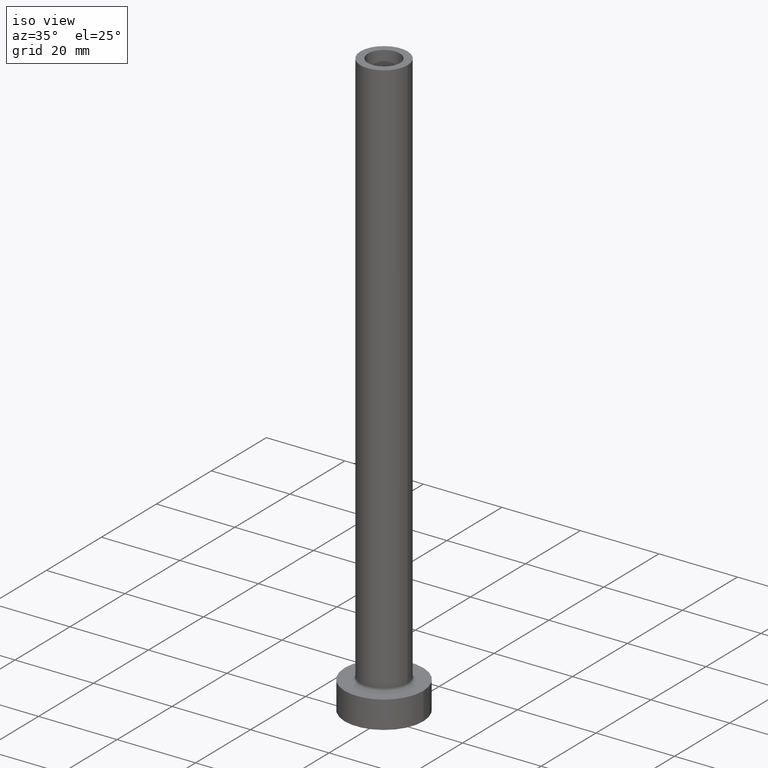
[diagram: clean part render]
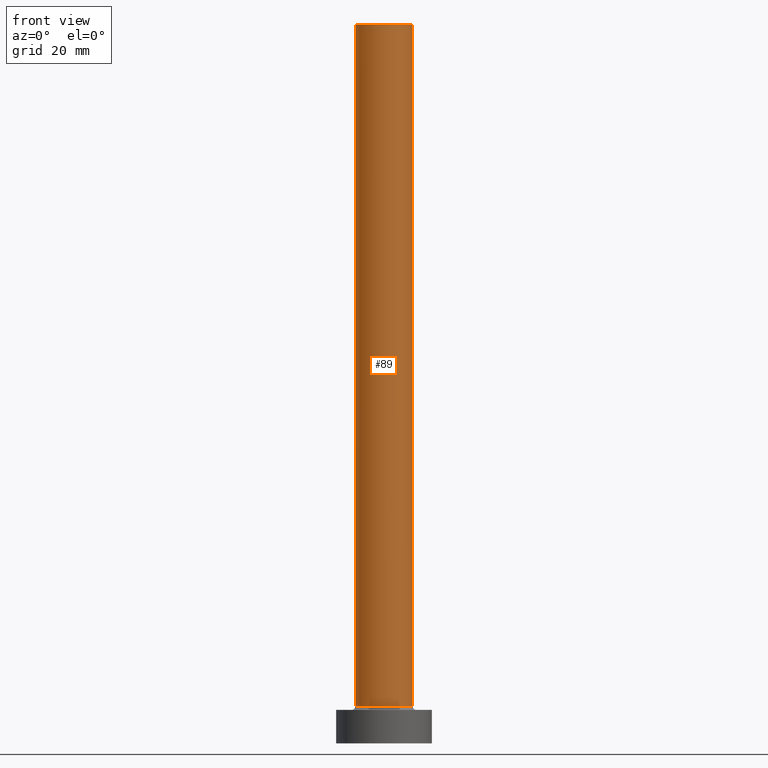
[diagram: tour spotlight — one face highlighted and labeled with its STEP entity id]
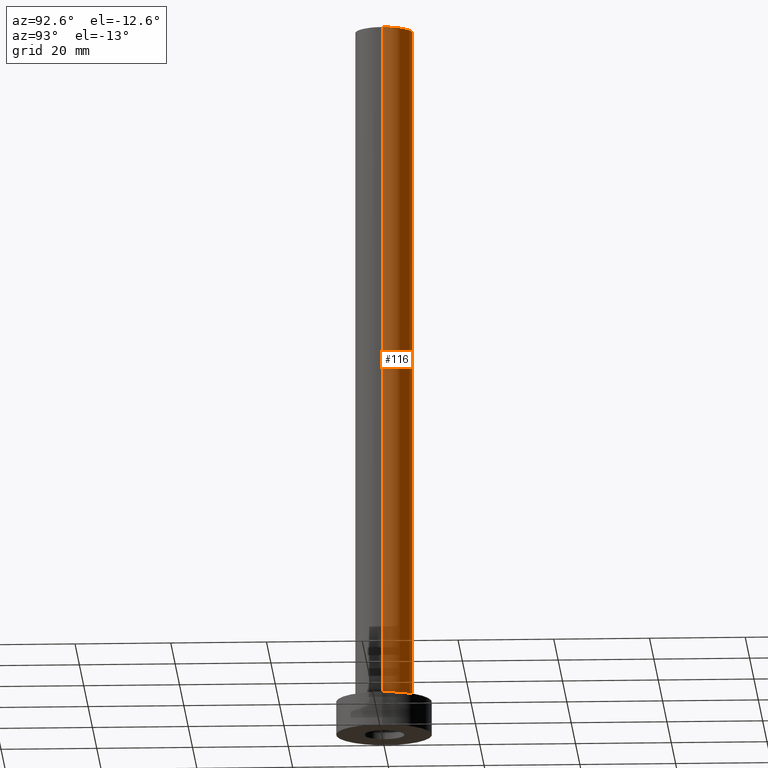
[diagram: tour spotlight — one face highlighted and labeled with its STEP entity id]
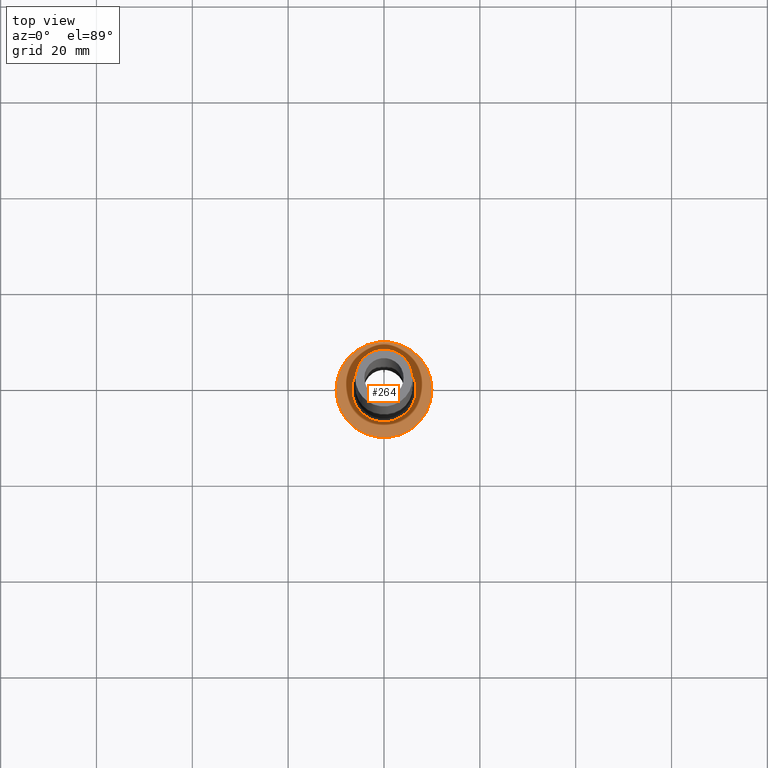
[diagram: tour spotlight — one face highlighted and labeled with its STEP entity id]
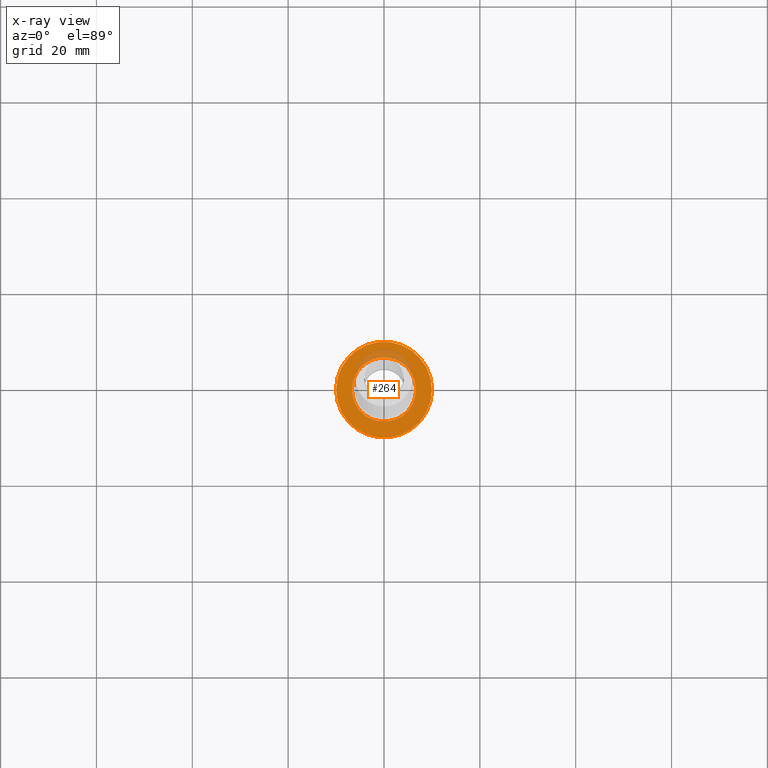
[diagram: x-ray of the same camera — body ghosted, this tour face saturated]
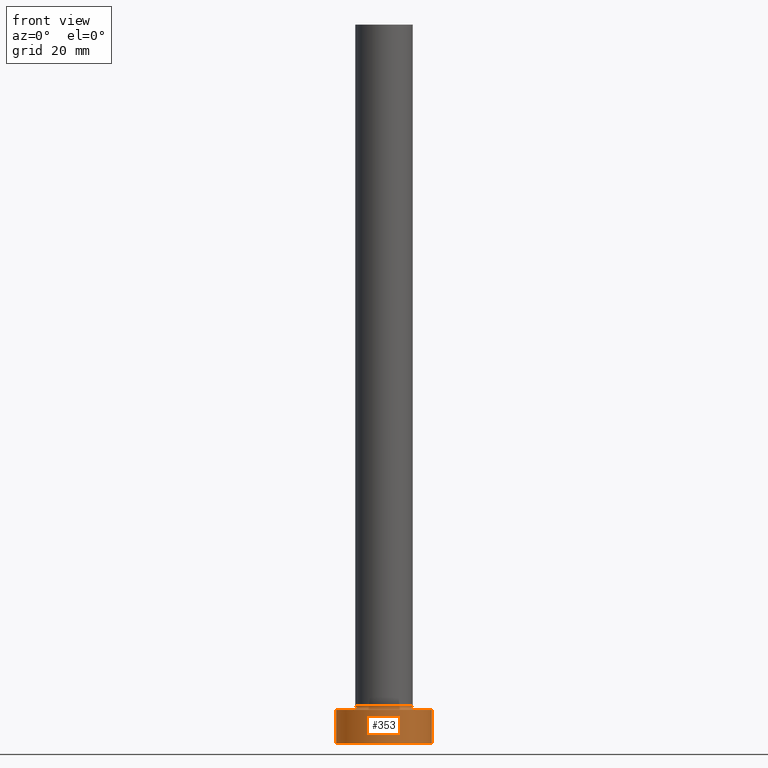
[diagram: tour spotlight — one face highlighted and labeled with its STEP entity id]
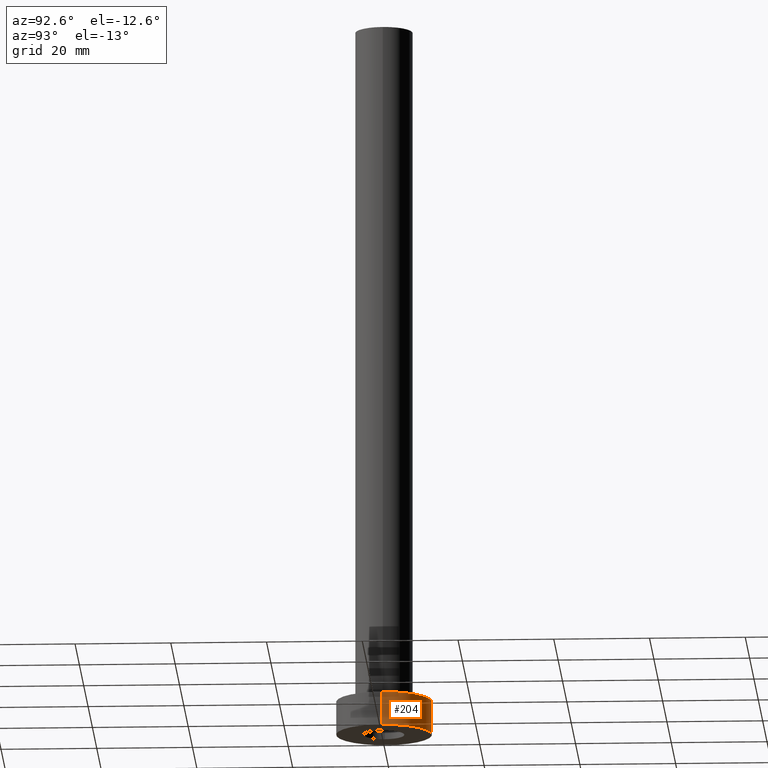
[diagram: tour spotlight — one face highlighted and labeled with its STEP entity id]
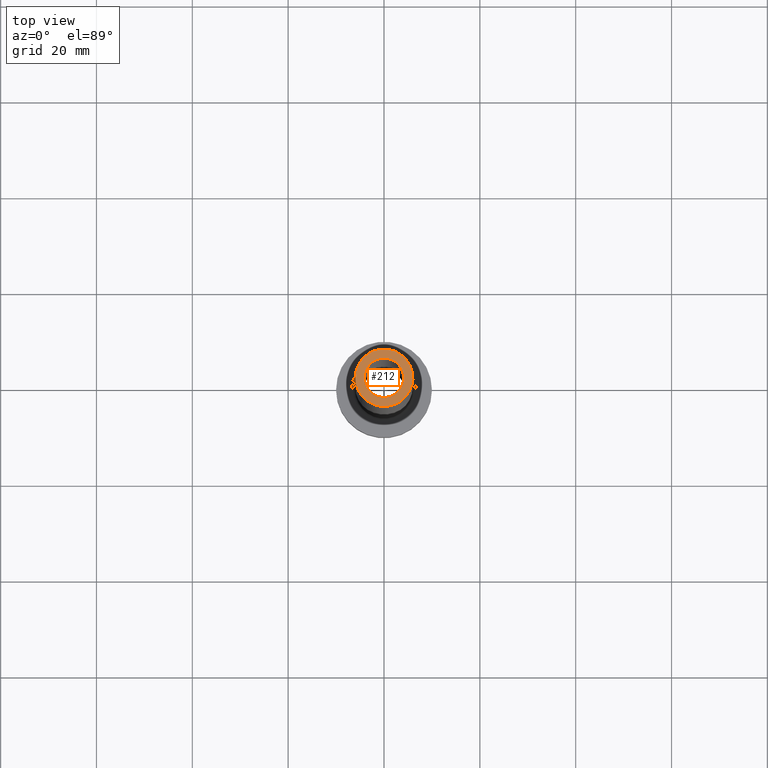
[diagram: tour spotlight — one face highlighted and labeled with its STEP entity id]
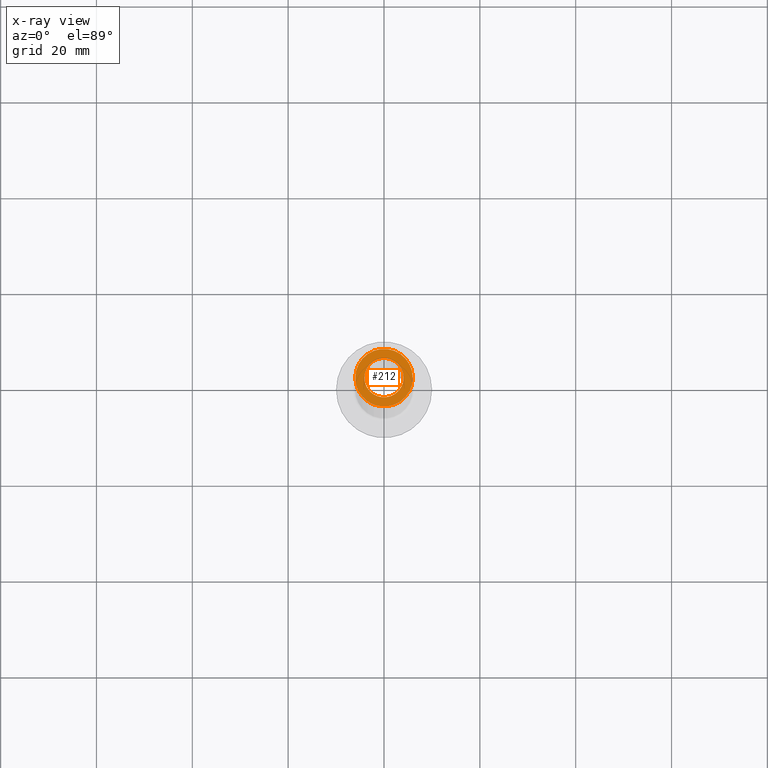
[diagram: x-ray of the same camera — body ghosted, this tour face saturated]
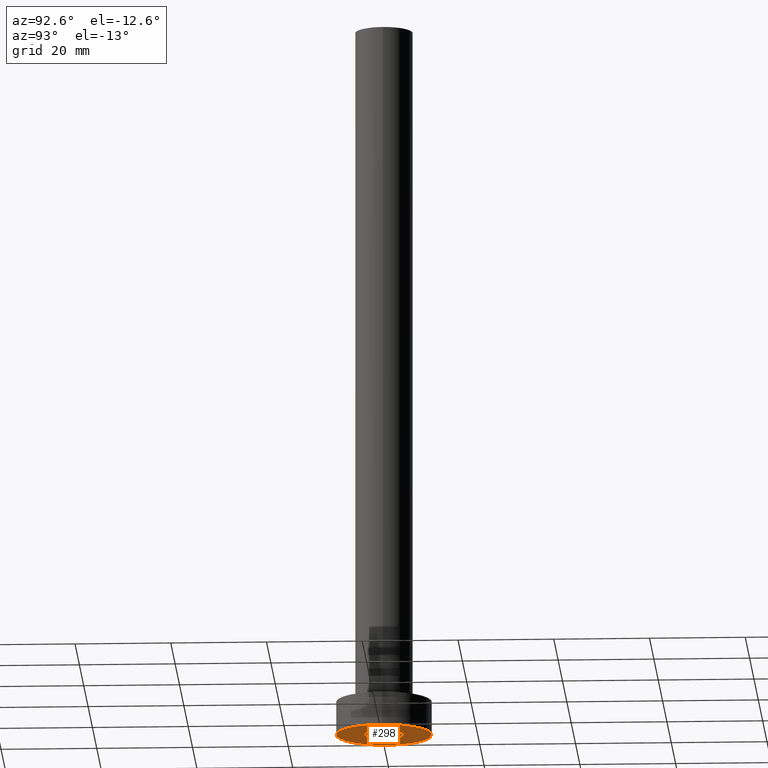
[diagram: tour spotlight — one face highlighted and labeled with its STEP entity id]
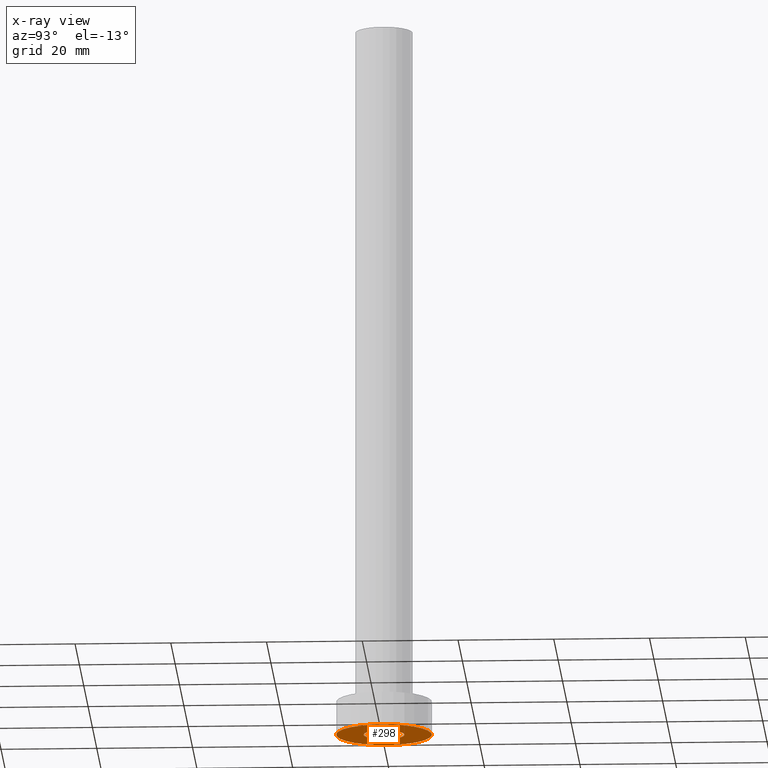
[diagram: x-ray of the same camera — body ghosted, this tour face saturated]
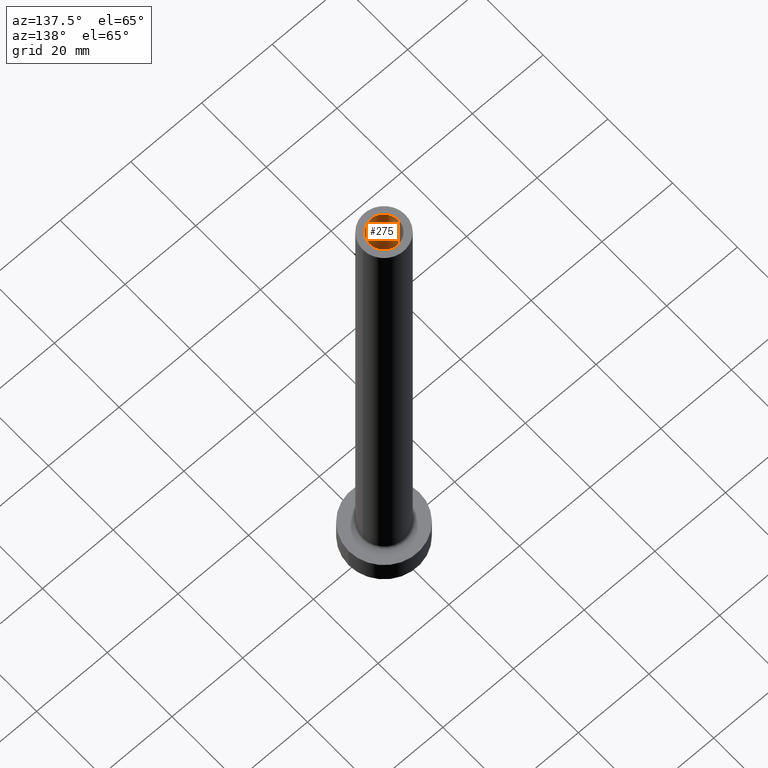
[diagram: tour spotlight — one face highlighted and labeled with its STEP entity id]
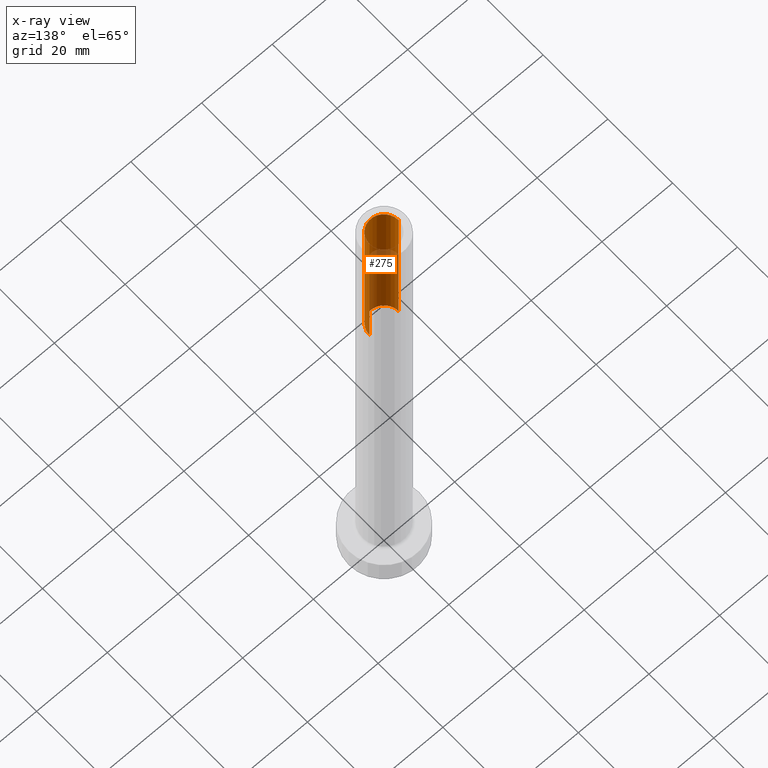
[diagram: x-ray of the same camera — body ghosted, this tour face saturated]
A machine part: a face-by-face anatomy tour. The part has 14 B-rep faces; the first image is the clean iso view, then the 8 largest visible faces are spotlighted one at a time (largest first), each with its STEP entity span.

Face 1 — front view, entity #89. In plain terms, the highlighted cylindrical surface (edge-blend (fillet) strip) has radius 6 mm, axis along (-0, -0, -1).
Definition (entity closure, byte-faithful):
#6 = ORIENTED_EDGE ( 'NONE', *, *, #188, .F. ) ;
#22 = CIRCLE ( 'NONE', #141, 6.000000000000000888 ) ;
#23 = CARTESIAN_POINT ( 'NONE',  ( 6.000000000000000888, 7.347880794884120722E-16, 150.0000000000000000 ) ) ;
#28 = DIRECTION ( 'NONE',  ( -0.000000000000000000, -0.000000000000000000, -1.000000000000000000 ) ) ;
#32 = DIRECTION ( 'NONE',  ( 1.000000000000000000, 0.000000000000000000, 0.000000000000000000 ) ) ;
#38 = ORIENTED_EDGE ( 'NONE', *, *, #315, .F. ) ;
#51 = CARTESIAN_POINT ( 'NONE',  ( -6.000000000000000888, 0.000000000000000000, 7.700000000000012612 ) ) ;
#66 = EDGE_CURVE ( 'NONE', #278, #240, #383, .T. ) ;
#69 = CARTESIAN_POINT ( 'NONE',  ( 0.000000000000000000, 0.000000000000000000, 7.700000000000012612 ) ) ;
#83 = ORIENTED_EDGE ( 'NONE', *, *, #377, .T. ) ;
#89 = ADVANCED_FACE ( 'NONE', ( #375 ), #189, .T. ) ;
#95 = CIRCLE ( 'NONE', #162, 6.000000000000000888 ) ;
#104 = CARTESIAN_POINT ( 'NONE',  ( -6.000000000000000888, 0.000000000000000000, 150.0000000000000000 ) ) ;
#135 = AXIS2_PLACEMENT_3D ( 'NONE', #309, #405, #446 ) ;
#141 = AXIS2_PLACEMENT_3D ( 'NONE', #69, #390, #32 ) ;
#148 = DIRECTION ( 'NONE',  ( 1.000000000000000000, 0.000000000000000000, 0.000000000000000000 ) ) ;
#161 = CARTESIAN_POINT ( 'NONE',  ( 6.000000000000000888, 7.347880794884120722E-16, 7.700000000000012612 ) ) ;
#162 = AXIS2_PLACEMENT_3D ( 'NONE', #216, #219, #148 ) ;
#168 = DIRECTION ( 'NONE',  ( -0.000000000000000000, -0.000000000000000000, -1.000000000000000000 ) ) ;
#169 = CARTESIAN_POINT ( 'NONE',  ( 6.000000000000000888, 7.347880794884120722E-16, 150.0000000000000000 ) ) ;
#188 = EDGE_CURVE ( 'NONE', #278, #352, #95, .T. ) ;
#189 = CYLINDRICAL_SURFACE ( 'NONE', #135, 6.000000000000000888 ) ;
#216 = CARTESIAN_POINT ( 'NONE',  ( 0.000000000000000000, 0.000000000000000000, 150.0000000000000000 ) ) ;
#219 = DIRECTION ( 'NONE',  ( 0.000000000000000000, 0.000000000000000000, 1.000000000000000000 ) ) ;
#227 = VECTOR ( 'NONE', #168, 1000.000000000000000 ) ;
#240 = VERTEX_POINT ( 'NONE', #51 ) ;
#259 = VERTEX_POINT ( 'NONE', #161 ) ;
#278 = VERTEX_POINT ( 'NONE', #104 ) ;
#300 = ORIENTED_EDGE ( 'NONE', *, *, #66, .T. ) ;
#309 = CARTESIAN_POINT ( 'NONE',  ( 0.000000000000000000, 0.000000000000000000, 150.0000000000000000 ) ) ;
#315 = EDGE_CURVE ( 'NONE', #352, #259, #458, .T. ) ;
#343 = VECTOR ( 'NONE', #28, 1000.000000000000000 ) ;
#344 = CARTESIAN_POINT ( 'NONE',  ( -6.000000000000000888, 0.000000000000000000, 150.0000000000000000 ) ) ;
#352 = VERTEX_POINT ( 'NONE', #23 ) ;
#375 = FACE_OUTER_BOUND ( 'NONE', #400, .T. ) ;
#377 = EDGE_CURVE ( 'NONE', #240, #259, #22, .T. ) ;
#383 = LINE ( 'NONE', #344, #343 ) ;
#390 = DIRECTION ( 'NONE',  ( 0.000000000000000000, 0.000000000000000000, 1.000000000000000000 ) ) ;
#400 = EDGE_LOOP ( 'NONE', ( #38, #6, #300, #83 ) ) ;
#405 = DIRECTION ( 'NONE',  ( -0.000000000000000000, -0.000000000000000000, -1.000000000000000000 ) ) ;
#446 = DIRECTION ( 'NONE',  ( -1.000000000000000000, 0.000000000000000000, 0.000000000000000000 ) ) ;
#458 = LINE ( 'NONE', #169, #227 ) ;

Face 2 — auxiliary view, entity #116. In plain terms, the highlighted cylindrical surface (edge-blend (fillet) strip) has radius 6 mm, axis along (-0, -0, -1).
Definition (entity closure, byte-faithful):
#15 = ORIENTED_EDGE ( 'NONE', *, *, #315, .T. ) ;
#17 = EDGE_CURVE ( 'NONE', #352, #278, #449, .T. ) ;
#23 = CARTESIAN_POINT ( 'NONE',  ( 6.000000000000000888, 7.347880794884120722E-16, 150.0000000000000000 ) ) ;
#28 = DIRECTION ( 'NONE',  ( -0.000000000000000000, -0.000000000000000000, -1.000000000000000000 ) ) ;
#51 = CARTESIAN_POINT ( 'NONE',  ( -6.000000000000000888, 0.000000000000000000, 7.700000000000012612 ) ) ;
#66 = EDGE_CURVE ( 'NONE', #278, #240, #383, .T. ) ;
#99 = DIRECTION ( 'NONE',  ( 1.000000000000000000, 0.000000000000000000, 0.000000000000000000 ) ) ;
#101 = DIRECTION ( 'NONE',  ( 1.000000000000000000, 0.000000000000000000, 0.000000000000000000 ) ) ;
#104 = CARTESIAN_POINT ( 'NONE',  ( -6.000000000000000888, 0.000000000000000000, 150.0000000000000000 ) ) ;
#116 = ADVANCED_FACE ( 'NONE', ( #231 ), #232, .T. ) ;
#131 = DIRECTION ( 'NONE',  ( 0.000000000000000000, 0.000000000000000000, 1.000000000000000000 ) ) ;
#161 = CARTESIAN_POINT ( 'NONE',  ( 6.000000000000000888, 7.347880794884120722E-16, 7.700000000000012612 ) ) ;
#168 = DIRECTION ( 'NONE',  ( -0.000000000000000000, -0.000000000000000000, -1.000000000000000000 ) ) ;
#169 = CARTESIAN_POINT ( 'NONE',  ( 6.000000000000000888, 7.347880794884120722E-16, 150.0000000000000000 ) ) ;
#173 = AXIS2_PLACEMENT_3D ( 'NONE', #373, #193, #267 ) ;
#193 = DIRECTION ( 'NONE',  ( -0.000000000000000000, -0.000000000000000000, -1.000000000000000000 ) ) ;
#210 = ORIENTED_EDGE ( 'NONE', *, *, #66, .F. ) ;
#214 = CIRCLE ( 'NONE', #357, 6.000000000000000888 ) ;
#227 = VECTOR ( 'NONE', #168, 1000.000000000000000 ) ;
#231 = FACE_OUTER_BOUND ( 'NONE', #397, .T. ) ;
#232 = CYLINDRICAL_SURFACE ( 'NONE', #173, 6.000000000000000888 ) ;
#240 = VERTEX_POINT ( 'NONE', #51 ) ;
#247 = CARTESIAN_POINT ( 'NONE',  ( 0.000000000000000000, 0.000000000000000000, 7.700000000000012612 ) ) ;
#259 = VERTEX_POINT ( 'NONE', #161 ) ;
#267 = DIRECTION ( 'NONE',  ( -1.000000000000000000, 0.000000000000000000, 0.000000000000000000 ) ) ;
#269 = DIRECTION ( 'NONE',  ( 0.000000000000000000, 0.000000000000000000, 1.000000000000000000 ) ) ;
#277 = ORIENTED_EDGE ( 'NONE', *, *, #303, .T. ) ;
#278 = VERTEX_POINT ( 'NONE', #104 ) ;
#303 = EDGE_CURVE ( 'NONE', #259, #240, #214, .T. ) ;
#315 = EDGE_CURVE ( 'NONE', #352, #259, #458, .T. ) ;
#323 = AXIS2_PLACEMENT_3D ( 'NONE', #448, #131, #101 ) ;
#343 = VECTOR ( 'NONE', #28, 1000.000000000000000 ) ;
#344 = CARTESIAN_POINT ( 'NONE',  ( -6.000000000000000888, 0.000000000000000000, 150.0000000000000000 ) ) ;
#352 = VERTEX_POINT ( 'NONE', #23 ) ;
#357 = AXIS2_PLACEMENT_3D ( 'NONE', #247, #269, #99 ) ;
#373 = CARTESIAN_POINT ( 'NONE',  ( 0.000000000000000000, 0.000000000000000000, 150.0000000000000000 ) ) ;
#383 = LINE ( 'NONE', #344, #343 ) ;
#397 = EDGE_LOOP ( 'NONE', ( #430, #15, #277, #210 ) ) ;
#430 = ORIENTED_EDGE ( 'NONE', *, *, #17, .F. ) ;
#448 = CARTESIAN_POINT ( 'NONE',  ( 0.000000000000000000, 0.000000000000000000, 150.0000000000000000 ) ) ;
#449 = CIRCLE ( 'NONE', #323, 6.000000000000000888 ) ;
#458 = LINE ( 'NONE', #169, #227 ) ;

Face 3 — top view, entity #264. An x-ray twin of the same camera follows (body ghosted, this face saturated) — the face is partly hidden behind the body. In plain terms, the highlighted planar face has unit normal (0, 0, 1).
Definition (entity closure, byte-faithful):
#12 = DIRECTION ( 'NONE',  ( 0.000000000000000000, 0.000000000000000000, 1.000000000000000000 ) ) ;
#20 = PLANE ( 'NONE',  #438 ) ;
#45 = VERTEX_POINT ( 'NONE', #58 ) ;
#46 = EDGE_CURVE ( 'NONE', #292, #355, #403, .T. ) ;
#55 = DIRECTION ( 'NONE',  ( 1.000000000000000000, 0.000000000000000000, 0.000000000000000000 ) ) ;
#58 = CARTESIAN_POINT ( 'NONE',  ( -10.00000000000000000, 0.000000000000000000, 7.000000000000000000 ) ) ;
#64 = DIRECTION ( 'NONE',  ( 0.000000000000000000, 0.000000000000000000, 1.000000000000000000 ) ) ;
#65 = AXIS2_PLACEMENT_3D ( 'NONE', #156, #118, #301 ) ;
#96 = DIRECTION ( 'NONE',  ( 0.000000000000000000, 0.000000000000000000, 1.000000000000000000 ) ) ;
#111 = ORIENTED_EDGE ( 'NONE', *, *, #374, .T. ) ;
#118 = DIRECTION ( 'NONE',  ( -0.000000000000000000, -0.000000000000000000, -1.000000000000000000 ) ) ;
#123 = CARTESIAN_POINT ( 'NONE',  ( 0.000000000000000000, 0.000000000000000000, 7.000000000000000000 ) ) ;
#144 = FACE_BOUND ( 'NONE', #295, .T. ) ;
#153 = CIRCLE ( 'NONE', #192, 10.00000000000000000 ) ;
#154 = ORIENTED_EDGE ( 'NONE', *, *, #457, .T. ) ;
#156 = CARTESIAN_POINT ( 'NONE',  ( 0.000000000000000000, 0.000000000000000000, 7.000000000000000000 ) ) ;
#164 = CARTESIAN_POINT ( 'NONE',  ( -6.700000000000001066, 8.205133554287267548E-16, 7.000000000000006217 ) ) ;
#192 = AXIS2_PLACEMENT_3D ( 'NONE', #324, #64, #351 ) ;
#198 = CIRCLE ( 'NONE', #65, 6.700000000000001066 ) ;
#211 = DIRECTION ( 'NONE',  ( 1.000000000000000000, 0.000000000000000000, 0.000000000000000000 ) ) ;
#236 = DIRECTION ( 'NONE',  ( -0.000000000000000000, -0.000000000000000000, -1.000000000000000000 ) ) ;
#249 = AXIS2_PLACEMENT_3D ( 'NONE', #123, #236, #55 ) ;
#258 = ORIENTED_EDGE ( 'NONE', *, *, #337, .T. ) ;
#260 = EDGE_LOOP ( 'NONE', ( #258, #111 ) ) ;
#264 = ADVANCED_FACE ( 'NONE', ( #144, #434 ), #20, .T. ) ;
#266 = CARTESIAN_POINT ( 'NONE',  ( 0.000000000000000000, 0.000000000000000000, 7.000000000000000000 ) ) ;
#272 = DIRECTION ( 'NONE',  ( 1.000000000000000000, 0.000000000000000000, -0.000000000000000000 ) ) ;
#282 = CARTESIAN_POINT ( 'NONE',  ( 10.00000000000000000, 1.224646799147353256E-15, 7.000000000000000000 ) ) ;
#292 = VERTEX_POINT ( 'NONE', #459 ) ;
#293 = VERTEX_POINT ( 'NONE', #282 ) ;
#295 = EDGE_LOOP ( 'NONE', ( #392, #154 ) ) ;
#301 = DIRECTION ( 'NONE',  ( 1.000000000000000000, 0.000000000000000000, 0.000000000000000000 ) ) ;
#324 = CARTESIAN_POINT ( 'NONE',  ( 0.000000000000000000, 0.000000000000000000, 7.000000000000000000 ) ) ;
#337 = EDGE_CURVE ( 'NONE', #45, #293, #369, .T. ) ;
#349 = AXIS2_PLACEMENT_3D ( 'NONE', #416, #96, #211 ) ;
#351 = DIRECTION ( 'NONE',  ( 1.000000000000000000, 0.000000000000000000, 0.000000000000000000 ) ) ;
#355 = VERTEX_POINT ( 'NONE', #164 ) ;
#369 = CIRCLE ( 'NONE', #349, 10.00000000000000000 ) ;
#374 = EDGE_CURVE ( 'NONE', #293, #45, #153, .T. ) ;
#392 = ORIENTED_EDGE ( 'NONE', *, *, #46, .T. ) ;
#403 = CIRCLE ( 'NONE', #249, 6.700000000000001066 ) ;
#416 = CARTESIAN_POINT ( 'NONE',  ( 0.000000000000000000, 0.000000000000000000, 7.000000000000000000 ) ) ;
#434 = FACE_OUTER_BOUND ( 'NONE', #260, .T. ) ;
#438 = AXIS2_PLACEMENT_3D ( 'NONE', #266, #12, #272 ) ;
#457 = EDGE_CURVE ( 'NONE', #355, #292, #198, .T. ) ;
#459 = CARTESIAN_POINT ( 'NONE',  ( 6.700000000000001066, 0.000000000000000000, 7.000000000000006217 ) ) ;

Face 4 — front view, entity #353. In plain terms, the highlighted cylindrical surface (partial cylindrical patch) has radius 10 mm, axis along (-0, -0, -1).
Definition (entity closure, byte-faithful):
#27 = ORIENTED_EDGE ( 'NONE', *, *, #337, .F. ) ;
#36 = VERTEX_POINT ( 'NONE', #339 ) ;
#45 = VERTEX_POINT ( 'NONE', #58 ) ;
#52 = EDGE_CURVE ( 'NONE', #36, #220, #61, .T. ) ;
#54 = EDGE_CURVE ( 'NONE', #293, #220, #314, .T. ) ;
#58 = CARTESIAN_POINT ( 'NONE',  ( -10.00000000000000000, 0.000000000000000000, 7.000000000000000000 ) ) ;
#61 = CIRCLE ( 'NONE', #201, 10.00000000000000000 ) ;
#96 = DIRECTION ( 'NONE',  ( 0.000000000000000000, 0.000000000000000000, 1.000000000000000000 ) ) ;
#133 = CARTESIAN_POINT ( 'NONE',  ( 0.000000000000000000, 0.000000000000000000, 7.000000000000000000 ) ) ;
#134 = ORIENTED_EDGE ( 'NONE', *, *, #410, .T. ) ;
#181 = EDGE_LOOP ( 'NONE', ( #253, #27, #134, #356 ) ) ;
#197 = CARTESIAN_POINT ( 'NONE',  ( 0.000000000000000000, 0.000000000000000000, 0.000000000000000000 ) ) ;
#199 = DIRECTION ( 'NONE',  ( 1.000000000000000000, 0.000000000000000000, 0.000000000000000000 ) ) ;
#201 = AXIS2_PLACEMENT_3D ( 'NONE', #197, #312, #199 ) ;
#209 = DIRECTION ( 'NONE',  ( -0.000000000000000000, -0.000000000000000000, -1.000000000000000000 ) ) ;
#211 = DIRECTION ( 'NONE',  ( 1.000000000000000000, 0.000000000000000000, 0.000000000000000000 ) ) ;
#220 = VERTEX_POINT ( 'NONE', #245 ) ;
#239 = CYLINDRICAL_SURFACE ( 'NONE', #378, 10.00000000000000000 ) ;
#245 = CARTESIAN_POINT ( 'NONE',  ( 10.00000000000000000, 1.224646799147353256E-15, 0.000000000000000000 ) ) ;
#253 = ORIENTED_EDGE ( 'NONE', *, *, #54, .F. ) ;
#280 = DIRECTION ( 'NONE',  ( -0.000000000000000000, -0.000000000000000000, -1.000000000000000000 ) ) ;
#282 = CARTESIAN_POINT ( 'NONE',  ( 10.00000000000000000, 1.224646799147353256E-15, 7.000000000000000000 ) ) ;
#293 = VERTEX_POINT ( 'NONE', #282 ) ;
#312 = DIRECTION ( 'NONE',  ( 0.000000000000000000, 0.000000000000000000, 1.000000000000000000 ) ) ;
#314 = LINE ( 'NONE', #452, #435 ) ;
#337 = EDGE_CURVE ( 'NONE', #45, #293, #369, .T. ) ;
#339 = CARTESIAN_POINT ( 'NONE',  ( -10.00000000000000000, 0.000000000000000000, 0.000000000000000000 ) ) ;
#349 = AXIS2_PLACEMENT_3D ( 'NONE', #416, #96, #211 ) ;
#353 = ADVANCED_FACE ( 'NONE', ( #354 ), #239, .T. ) ;
#354 = FACE_OUTER_BOUND ( 'NONE', #181, .T. ) ;
#356 = ORIENTED_EDGE ( 'NONE', *, *, #52, .T. ) ;
#369 = CIRCLE ( 'NONE', #349, 10.00000000000000000 ) ;
#378 = AXIS2_PLACEMENT_3D ( 'NONE', #133, #280, #393 ) ;
#381 = LINE ( 'NONE', #453, #407 ) ;
#393 = DIRECTION ( 'NONE',  ( -1.000000000000000000, 0.000000000000000000, 0.000000000000000000 ) ) ;
#407 = VECTOR ( 'NONE', #209, 1000.000000000000000 ) ;
#410 = EDGE_CURVE ( 'NONE', #45, #36, #381, .T. ) ;
#416 = CARTESIAN_POINT ( 'NONE',  ( 0.000000000000000000, 0.000000000000000000, 7.000000000000000000 ) ) ;
#418 = DIRECTION ( 'NONE',  ( -0.000000000000000000, -0.000000000000000000, -1.000000000000000000 ) ) ;
#435 = VECTOR ( 'NONE', #418, 1000.000000000000000 ) ;
#452 = CARTESIAN_POINT ( 'NONE',  ( 10.00000000000000000, 1.224646799147353256E-15, 7.000000000000000000 ) ) ;
#453 = CARTESIAN_POINT ( 'NONE',  ( -10.00000000000000000, 0.000000000000000000, 7.000000000000000000 ) ) ;

Face 5 — auxiliary view, entity #204. In plain terms, the highlighted cylindrical surface (partial cylindrical patch) has radius 10 mm, axis along (-0, -0, -1).
Definition (entity closure, byte-faithful):
#36 = VERTEX_POINT ( 'NONE', #339 ) ;
#45 = VERTEX_POINT ( 'NONE', #58 ) ;
#54 = EDGE_CURVE ( 'NONE', #293, #220, #314, .T. ) ;
#58 = CARTESIAN_POINT ( 'NONE',  ( -10.00000000000000000, 0.000000000000000000, 7.000000000000000000 ) ) ;
#64 = DIRECTION ( 'NONE',  ( 0.000000000000000000, 0.000000000000000000, 1.000000000000000000 ) ) ;
#67 = DIRECTION ( 'NONE',  ( 1.000000000000000000, 0.000000000000000000, 0.000000000000000000 ) ) ;
#113 = FACE_OUTER_BOUND ( 'NONE', #316, .T. ) ;
#153 = CIRCLE ( 'NONE', #192, 10.00000000000000000 ) ;
#172 = DIRECTION ( 'NONE',  ( 0.000000000000000000, 0.000000000000000000, 1.000000000000000000 ) ) ;
#192 = AXIS2_PLACEMENT_3D ( 'NONE', #324, #64, #351 ) ;
#204 = ADVANCED_FACE ( 'NONE', ( #113 ), #396, .T. ) ;
#208 = DIRECTION ( 'NONE',  ( -0.000000000000000000, -0.000000000000000000, -1.000000000000000000 ) ) ;
#209 = DIRECTION ( 'NONE',  ( -0.000000000000000000, -0.000000000000000000, -1.000000000000000000 ) ) ;
#217 = ORIENTED_EDGE ( 'NONE', *, *, #54, .T. ) ;
#220 = VERTEX_POINT ( 'NONE', #245 ) ;
#245 = CARTESIAN_POINT ( 'NONE',  ( 10.00000000000000000, 1.224646799147353256E-15, 0.000000000000000000 ) ) ;
#282 = CARTESIAN_POINT ( 'NONE',  ( 10.00000000000000000, 1.224646799147353256E-15, 7.000000000000000000 ) ) ;
#293 = VERTEX_POINT ( 'NONE', #282 ) ;
#314 = LINE ( 'NONE', #452, #435 ) ;
#316 = EDGE_LOOP ( 'NONE', ( #325, #217, #382, #431 ) ) ;
#324 = CARTESIAN_POINT ( 'NONE',  ( 0.000000000000000000, 0.000000000000000000, 7.000000000000000000 ) ) ;
#325 = ORIENTED_EDGE ( 'NONE', *, *, #374, .F. ) ;
#339 = CARTESIAN_POINT ( 'NONE',  ( -10.00000000000000000, 0.000000000000000000, 0.000000000000000000 ) ) ;
#351 = DIRECTION ( 'NONE',  ( 1.000000000000000000, 0.000000000000000000, 0.000000000000000000 ) ) ;
#374 = EDGE_CURVE ( 'NONE', #293, #45, #153, .T. ) ;
#381 = LINE ( 'NONE', #453, #407 ) ;
#382 = ORIENTED_EDGE ( 'NONE', *, *, #388, .T. ) ;
#388 = EDGE_CURVE ( 'NONE', #220, #36, #412, .T. ) ;
#394 = CARTESIAN_POINT ( 'NONE',  ( 0.000000000000000000, 0.000000000000000000, 7.000000000000000000 ) ) ;
#396 = CYLINDRICAL_SURFACE ( 'NONE', #441, 10.00000000000000000 ) ;
#407 = VECTOR ( 'NONE', #209, 1000.000000000000000 ) ;
#410 = EDGE_CURVE ( 'NONE', #45, #36, #381, .T. ) ;
#412 = CIRCLE ( 'NONE', #454, 10.00000000000000000 ) ;
#418 = DIRECTION ( 'NONE',  ( -0.000000000000000000, -0.000000000000000000, -1.000000000000000000 ) ) ;
#422 = DIRECTION ( 'NONE',  ( -1.000000000000000000, 0.000000000000000000, 0.000000000000000000 ) ) ;
#428 = CARTESIAN_POINT ( 'NONE',  ( 0.000000000000000000, 0.000000000000000000, 0.000000000000000000 ) ) ;
#431 = ORIENTED_EDGE ( 'NONE', *, *, #410, .F. ) ;
#435 = VECTOR ( 'NONE', #418, 1000.000000000000000 ) ;
#441 = AXIS2_PLACEMENT_3D ( 'NONE', #394, #208, #422 ) ;
#452 = CARTESIAN_POINT ( 'NONE',  ( 10.00000000000000000, 1.224646799147353256E-15, 7.000000000000000000 ) ) ;
#453 = CARTESIAN_POINT ( 'NONE',  ( -10.00000000000000000, 0.000000000000000000, 7.000000000000000000 ) ) ;
#454 = AXIS2_PLACEMENT_3D ( 'NONE', #428, #172, #67 ) ;

Face 6 — top view, entity #212. An x-ray twin of the same camera follows (body ghosted, this face saturated) — the face is partly hidden behind the body. In plain terms, the highlighted planar face has unit normal (0, 0, 1).
Definition (entity closure, byte-faithful):
#17 = EDGE_CURVE ( 'NONE', #352, #278, #449, .T. ) ;
#23 = CARTESIAN_POINT ( 'NONE',  ( 6.000000000000000888, 7.347880794884120722E-16, 150.0000000000000000 ) ) ;
#31 = AXIS2_PLACEMENT_3D ( 'NONE', #62, #109, #450 ) ;
#35 = CARTESIAN_POINT ( 'NONE',  ( 0.000000000000000000, 0.000000000000000000, 150.0000000000000000 ) ) ;
#41 = ORIENTED_EDGE ( 'NONE', *, *, #188, .T. ) ;
#62 = CARTESIAN_POINT ( 'NONE',  ( 0.000000000000000000, 0.000000000000000000, 150.0000000000000000 ) ) ;
#73 = VERTEX_POINT ( 'NONE', #157 ) ;
#95 = CIRCLE ( 'NONE', #162, 6.000000000000000888 ) ;
#97 = EDGE_LOOP ( 'NONE', ( #114, #296 ) ) ;
#100 = DIRECTION ( 'NONE',  ( 1.000000000000000000, 0.000000000000000000, 0.000000000000000000 ) ) ;
#101 = DIRECTION ( 'NONE',  ( 1.000000000000000000, 0.000000000000000000, 0.000000000000000000 ) ) ;
#104 = CARTESIAN_POINT ( 'NONE',  ( -6.000000000000000888, 0.000000000000000000, 150.0000000000000000 ) ) ;
#106 = AXIS2_PLACEMENT_3D ( 'NONE', #35, #461, #140 ) ;
#109 = DIRECTION ( 'NONE',  ( 0.000000000000000000, 0.000000000000000000, 1.000000000000000000 ) ) ;
#114 = ORIENTED_EDGE ( 'NONE', *, *, #432, .F. ) ;
#131 = DIRECTION ( 'NONE',  ( 0.000000000000000000, 0.000000000000000000, 1.000000000000000000 ) ) ;
#137 = FACE_BOUND ( 'NONE', #97, .T. ) ;
#140 = DIRECTION ( 'NONE',  ( 1.000000000000000000, 0.000000000000000000, -0.000000000000000000 ) ) ;
#148 = DIRECTION ( 'NONE',  ( 1.000000000000000000, 0.000000000000000000, 0.000000000000000000 ) ) ;
#149 = EDGE_LOOP ( 'NONE', ( #41, #362 ) ) ;
#157 = CARTESIAN_POINT ( 'NONE',  ( 4.099999999999999645, 5.021051876504146399E-16, 150.0000000000000000 ) ) ;
#162 = AXIS2_PLACEMENT_3D ( 'NONE', #216, #219, #148 ) ;
#178 = EDGE_CURVE ( 'NONE', #73, #334, #318, .T. ) ;
#188 = EDGE_CURVE ( 'NONE', #278, #352, #95, .T. ) ;
#194 = CARTESIAN_POINT ( 'NONE',  ( 0.000000000000000000, 0.000000000000000000, 150.0000000000000000 ) ) ;
#212 = ADVANCED_FACE ( 'NONE', ( #137, #429 ), #425, .T. ) ;
#216 = CARTESIAN_POINT ( 'NONE',  ( 0.000000000000000000, 0.000000000000000000, 150.0000000000000000 ) ) ;
#219 = DIRECTION ( 'NONE',  ( 0.000000000000000000, 0.000000000000000000, 1.000000000000000000 ) ) ;
#262 = AXIS2_PLACEMENT_3D ( 'NONE', #194, #306, #100 ) ;
#278 = VERTEX_POINT ( 'NONE', #104 ) ;
#296 = ORIENTED_EDGE ( 'NONE', *, *, #178, .F. ) ;
#306 = DIRECTION ( 'NONE',  ( 0.000000000000000000, 0.000000000000000000, 1.000000000000000000 ) ) ;
#318 = CIRCLE ( 'NONE', #262, 4.099999999999999645 ) ;
#323 = AXIS2_PLACEMENT_3D ( 'NONE', #448, #131, #101 ) ;
#334 = VERTEX_POINT ( 'NONE', #424 ) ;
#352 = VERTEX_POINT ( 'NONE', #23 ) ;
#362 = ORIENTED_EDGE ( 'NONE', *, *, #17, .T. ) ;
#372 = CIRCLE ( 'NONE', #31, 4.099999999999999645 ) ;
#424 = CARTESIAN_POINT ( 'NONE',  ( -4.099999999999999645, 0.000000000000000000, 150.0000000000000000 ) ) ;
#425 = PLANE ( 'NONE',  #106 ) ;
#429 = FACE_OUTER_BOUND ( 'NONE', #149, .T. ) ;
#432 = EDGE_CURVE ( 'NONE', #334, #73, #372, .T. ) ;
#448 = CARTESIAN_POINT ( 'NONE',  ( 0.000000000000000000, 0.000000000000000000, 150.0000000000000000 ) ) ;
#449 = CIRCLE ( 'NONE', #323, 6.000000000000000888 ) ;
#450 = DIRECTION ( 'NONE',  ( 1.000000000000000000, 0.000000000000000000, 0.000000000000000000 ) ) ;
#461 = DIRECTION ( 'NONE',  ( 0.000000000000000000, 0.000000000000000000, 1.000000000000000000 ) ) ;

Face 7 — auxiliary view, entity #298. An x-ray twin of the same camera follows (body ghosted, this face saturated) — the face is partly hidden behind the body. In plain terms, the highlighted planar face has unit normal (0, 0, 1).
Definition (entity closure, byte-faithful):
#18 = AXIS2_PLACEMENT_3D ( 'NONE', #406, #263, #370 ) ;
#26 = CARTESIAN_POINT ( 'NONE',  ( 0.000000000000000000, 0.000000000000000000, 0.000000000000000000 ) ) ;
#30 = CARTESIAN_POINT ( 'NONE',  ( 4.250000000000000000, 5.204748896376250699E-16, 0.000000000000000000 ) ) ;
#36 = VERTEX_POINT ( 'NONE', #339 ) ;
#52 = EDGE_CURVE ( 'NONE', #36, #220, #61, .T. ) ;
#61 = CIRCLE ( 'NONE', #201, 10.00000000000000000 ) ;
#67 = DIRECTION ( 'NONE',  ( 1.000000000000000000, 0.000000000000000000, 0.000000000000000000 ) ) ;
#82 = AXIS2_PLACEMENT_3D ( 'NONE', #26, #105, #244 ) ;
#105 = DIRECTION ( 'NONE',  ( -0.000000000000000000, -0.000000000000000000, -1.000000000000000000 ) ) ;
#117 = ORIENTED_EDGE ( 'NONE', *, *, #388, .F. ) ;
#124 = EDGE_LOOP ( 'NONE', ( #142, #138 ) ) ;
#126 = DIRECTION ( 'NONE',  ( 0.000000000000000000, 0.000000000000000000, 1.000000000000000000 ) ) ;
#129 = CIRCLE ( 'NONE', #82, 4.250000000000000000 ) ;
#130 = FACE_OUTER_BOUND ( 'NONE', #330, .T. ) ;
#138 = ORIENTED_EDGE ( 'NONE', *, *, #366, .F. ) ;
#142 = ORIENTED_EDGE ( 'NONE', *, *, #196, .F. ) ;
#145 = ORIENTED_EDGE ( 'NONE', *, *, #52, .F. ) ;
#159 = AXIS2_PLACEMENT_3D ( 'NONE', #243, #126, #288 ) ;
#172 = DIRECTION ( 'NONE',  ( 0.000000000000000000, 0.000000000000000000, 1.000000000000000000 ) ) ;
#179 = VERTEX_POINT ( 'NONE', #183 ) ;
#183 = CARTESIAN_POINT ( 'NONE',  ( -4.250000000000000000, 0.000000000000000000, 0.000000000000000000 ) ) ;
#196 = EDGE_CURVE ( 'NONE', #179, #359, #427, .T. ) ;
#197 = CARTESIAN_POINT ( 'NONE',  ( 0.000000000000000000, 0.000000000000000000, 0.000000000000000000 ) ) ;
#199 = DIRECTION ( 'NONE',  ( 1.000000000000000000, 0.000000000000000000, 0.000000000000000000 ) ) ;
#201 = AXIS2_PLACEMENT_3D ( 'NONE', #197, #312, #199 ) ;
#220 = VERTEX_POINT ( 'NONE', #245 ) ;
#243 = CARTESIAN_POINT ( 'NONE',  ( 0.000000000000000000, 0.000000000000000000, 0.000000000000000000 ) ) ;
#244 = DIRECTION ( 'NONE',  ( 1.000000000000000000, 0.000000000000000000, 0.000000000000000000 ) ) ;
#245 = CARTESIAN_POINT ( 'NONE',  ( 10.00000000000000000, 1.224646799147353256E-15, 0.000000000000000000 ) ) ;
#263 = DIRECTION ( 'NONE',  ( -0.000000000000000000, -0.000000000000000000, -1.000000000000000000 ) ) ;
#276 = FACE_BOUND ( 'NONE', #124, .T. ) ;
#288 = DIRECTION ( 'NONE',  ( 1.000000000000000000, 0.000000000000000000, -0.000000000000000000 ) ) ;
#298 = ADVANCED_FACE ( 'NONE', ( #276, #130 ), #421, .F. ) ;
#312 = DIRECTION ( 'NONE',  ( 0.000000000000000000, 0.000000000000000000, 1.000000000000000000 ) ) ;
#330 = EDGE_LOOP ( 'NONE', ( #145, #117 ) ) ;
#339 = CARTESIAN_POINT ( 'NONE',  ( -10.00000000000000000, 0.000000000000000000, 0.000000000000000000 ) ) ;
#359 = VERTEX_POINT ( 'NONE', #30 ) ;
#366 = EDGE_CURVE ( 'NONE', #359, #179, #129, .T. ) ;
#370 = DIRECTION ( 'NONE',  ( 1.000000000000000000, 0.000000000000000000, 0.000000000000000000 ) ) ;
#388 = EDGE_CURVE ( 'NONE', #220, #36, #412, .T. ) ;
#406 = CARTESIAN_POINT ( 'NONE',  ( 0.000000000000000000, 0.000000000000000000, 0.000000000000000000 ) ) ;
#412 = CIRCLE ( 'NONE', #454, 10.00000000000000000 ) ;
#421 = PLANE ( 'NONE',  #159 ) ;
#427 = CIRCLE ( 'NONE', #18, 4.250000000000000000 ) ;
#428 = CARTESIAN_POINT ( 'NONE',  ( 0.000000000000000000, 0.000000000000000000, 0.000000000000000000 ) ) ;
#454 = AXIS2_PLACEMENT_3D ( 'NONE', #428, #172, #67 ) ;

Face 8 — auxiliary view, entity #275. An x-ray twin of the same camera follows (body ghosted, this face saturated) — the face is partly hidden behind the body. In plain terms, the highlighted cylindrical surface (edge-blend (fillet) strip) has radius 4.1 mm, axis along (0, 0, -1).
Definition (entity closure, byte-faithful):
#10 = AXIS2_PLACEMENT_3D ( 'NONE', #308, #319, #200 ) ;
#19 = CARTESIAN_POINT ( 'NONE',  ( -4.099999999999999645, 0.000000000000000000, 150.0000000000000000 ) ) ;
#25 = VECTOR ( 'NONE', #160, 1000.000000000000000 ) ;
#31 = AXIS2_PLACEMENT_3D ( 'NONE', #62, #109, #450 ) ;
#40 = CARTESIAN_POINT ( 'NONE',  ( 0.000000000000000000, 0.000000000000000000, 105.0000000000000000 ) ) ;
#60 = VERTEX_POINT ( 'NONE', #98 ) ;
#62 = CARTESIAN_POINT ( 'NONE',  ( 0.000000000000000000, 0.000000000000000000, 150.0000000000000000 ) ) ;
#73 = VERTEX_POINT ( 'NONE', #157 ) ;
#75 = DIRECTION ( 'NONE',  ( 0.000000000000000000, 0.000000000000000000, 1.000000000000000000 ) ) ;
#87 = LINE ( 'NONE', #19, #25 ) ;
#94 = EDGE_CURVE ( 'NONE', #334, #60, #87, .T. ) ;
#98 = CARTESIAN_POINT ( 'NONE',  ( -4.099999999999999645, 0.000000000000000000, 105.0000000000000000 ) ) ;
#103 = CYLINDRICAL_SURFACE ( 'NONE', #10, 4.099999999999999645 ) ;
#107 = ORIENTED_EDGE ( 'NONE', *, *, #94, .F. ) ;
#109 = DIRECTION ( 'NONE',  ( 0.000000000000000000, 0.000000000000000000, 1.000000000000000000 ) ) ;
#110 = ORIENTED_EDGE ( 'NONE', *, *, #432, .T. ) ;
#150 = ORIENTED_EDGE ( 'NONE', *, *, #283, .T. ) ;
#157 = CARTESIAN_POINT ( 'NONE',  ( 4.099999999999999645, 5.021051876504146399E-16, 150.0000000000000000 ) ) ;
#160 = DIRECTION ( 'NONE',  ( 0.000000000000000000, 0.000000000000000000, -1.000000000000000000 ) ) ;
#191 = EDGE_CURVE ( 'NONE', #60, #460, #398, .T. ) ;
#200 = DIRECTION ( 'NONE',  ( -1.000000000000000000, 0.000000000000000000, 0.000000000000000000 ) ) ;
#202 = DIRECTION ( 'NONE',  ( 0.000000000000000000, 0.000000000000000000, -1.000000000000000000 ) ) ;
#233 = VECTOR ( 'NONE', #202, 1000.000000000000000 ) ;
#251 = DIRECTION ( 'NONE',  ( 1.000000000000000000, 0.000000000000000000, 0.000000000000000000 ) ) ;
#275 = ADVANCED_FACE ( 'NONE', ( #329 ), #103, .F. ) ;
#283 = EDGE_CURVE ( 'NONE', #73, #460, #346, .T. ) ;
#308 = CARTESIAN_POINT ( 'NONE',  ( 0.000000000000000000, 0.000000000000000000, 150.0000000000000000 ) ) ;
#319 = DIRECTION ( 'NONE',  ( 0.000000000000000000, 0.000000000000000000, -1.000000000000000000 ) ) ;
#328 = ORIENTED_EDGE ( 'NONE', *, *, #191, .F. ) ;
#329 = FACE_OUTER_BOUND ( 'NONE', #365, .T. ) ;
#334 = VERTEX_POINT ( 'NONE', #424 ) ;
#336 = AXIS2_PLACEMENT_3D ( 'NONE', #40, #75, #251 ) ;
#346 = LINE ( 'NONE', #387, #233 ) ;
#365 = EDGE_LOOP ( 'NONE', ( #110, #150, #328, #107 ) ) ;
#372 = CIRCLE ( 'NONE', #31, 4.099999999999999645 ) ;
#387 = CARTESIAN_POINT ( 'NONE',  ( 4.099999999999999645, 5.021051876504146399E-16, 150.0000000000000000 ) ) ;
#398 = CIRCLE ( 'NONE', #336, 4.099999999999999645 ) ;
#424 = CARTESIAN_POINT ( 'NONE',  ( -4.099999999999999645, 0.000000000000000000, 150.0000000000000000 ) ) ;
#432 = EDGE_CURVE ( 'NONE', #334, #73, #372, .T. ) ;
#436 = CARTESIAN_POINT ( 'NONE',  ( 4.099999999999999645, 5.021051876504146399E-16, 105.0000000000000000 ) ) ;
#450 = DIRECTION ( 'NONE',  ( 1.000000000000000000, 0.000000000000000000, 0.000000000000000000 ) ) ;
#460 = VERTEX_POINT ( 'NONE', #436 ) ;